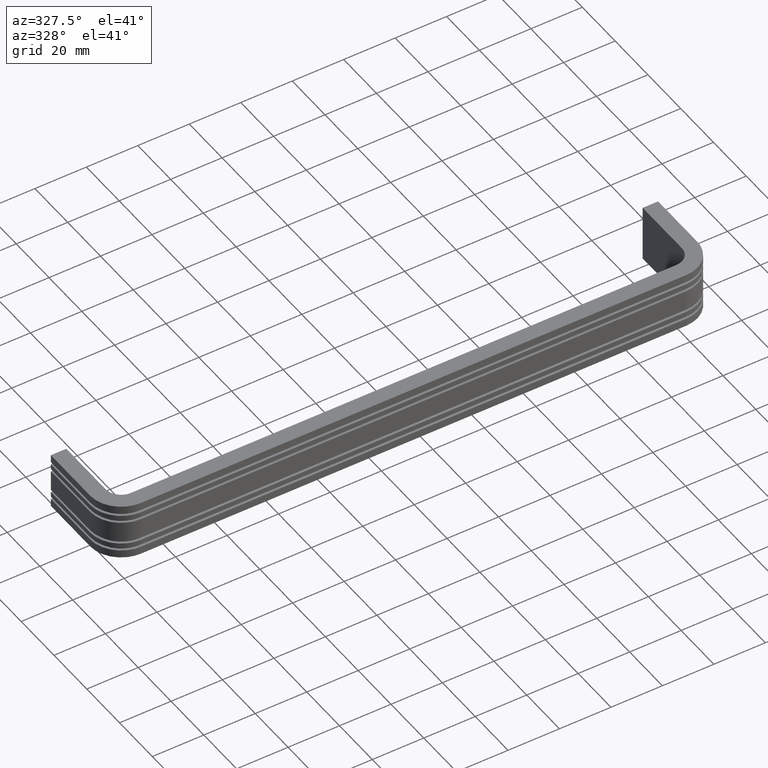
[diagram: clean part render]
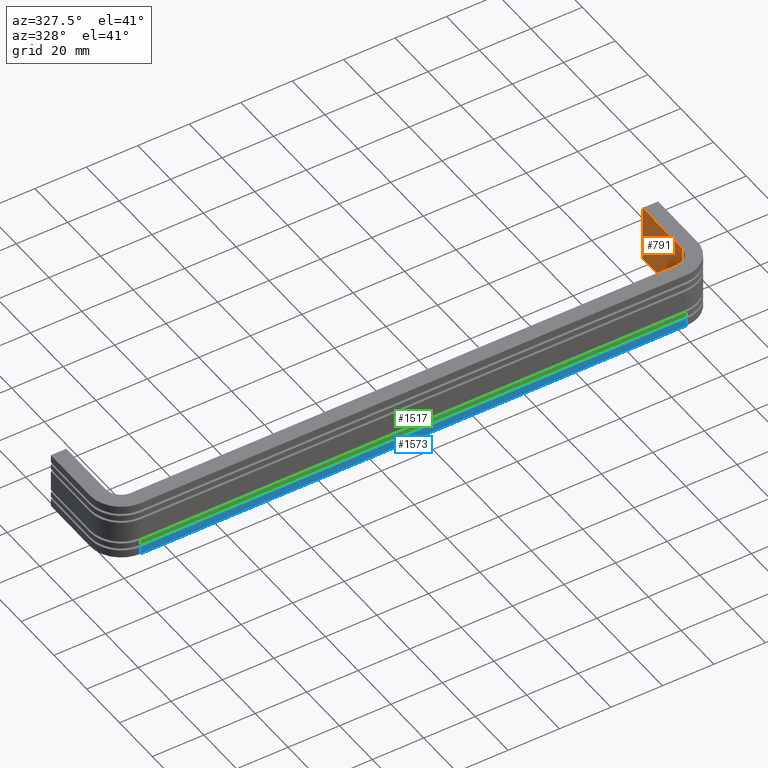
[diagram: same view with three faces highlighted in distinct colors, each labeled with its STEP entity id]
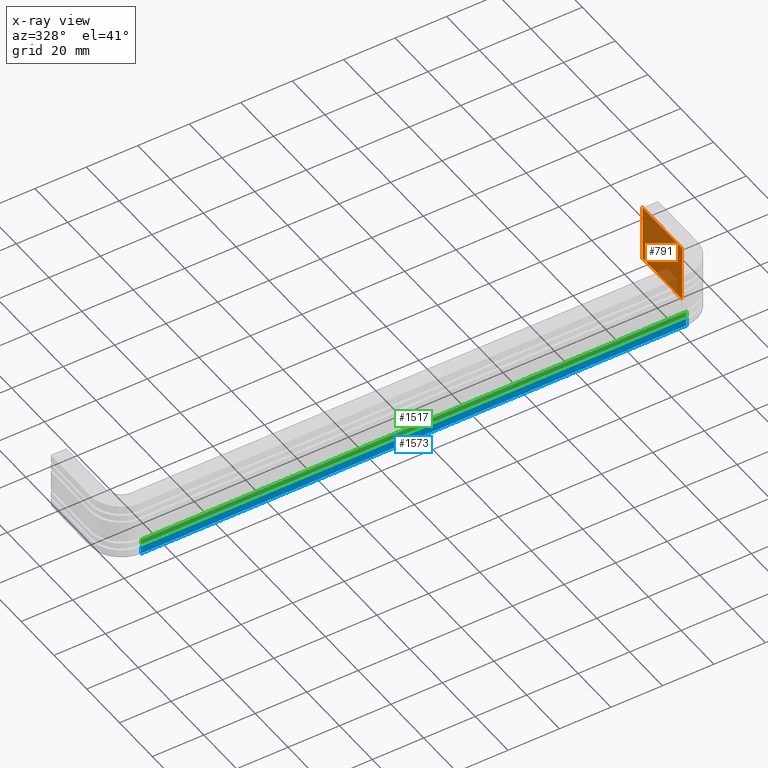
[diagram: x-ray of the same camera — body ghosted, the three highlighted faces saturated]
A machine part, auxiliary view with three faces highlighted in distinct colors.
The next image is the same camera in x-ray (body ghosted, the three faces saturated) — at least one of them is partly hidden behind the body in this view.
Their STEP definitions:

[orange] entity #791 — the highlighted face is a freeform B-spline surface patch.
#756=CARTESIAN_POINT('',(226.999900000000000,-25.198799953483348,12.098899957359730));
#757=CARTESIAN_POINT('',(226.999900000000000,-25.198799953483341,-12.098900547445711));
#758=CARTESIAN_POINT('',(226.999900000000000,1.198800597213507,12.098899957359730));
#759=CARTESIAN_POINT('',(226.999900000000000,1.198800597213507,-12.098900547445711));
#760=B_SPLINE_SURFACE_WITH_KNOTS('',1,1,((#756,#758),(#757,#759)),.UNSPECIFIED.,.F.,.F.,.U.,(2,2),(2,2),(0.0,24.197800504805439),(0.0,26.397600550696851),.UNSPECIFIED.);
#761=CARTESIAN_POINT('',(226.999900000000000,-24.0,-11.0));
#762=VERTEX_POINT('',#761);
#763=CARTESIAN_POINT('',(226.999900000000000,0.0,-11.0));
#764=VERTEX_POINT('',#763);
#765=CARTESIAN_POINT('',(226.999900000000000,-24.0,-11.0));
#766=CARTESIAN_POINT('',(226.999900000000000,0.0,-11.0));
#767=QUASI_UNIFORM_CURVE('',1,(#765,#766),.UNSPECIFIED.,.F.,.U.);
#768=EDGE_CURVE('',#762,#764,#767,.T.);
#769=ORIENTED_EDGE('',*,*,#768,.F.);
#770=CARTESIAN_POINT('',(226.999900000000000,-24.0,11.0));
#771=VERTEX_POINT('',#770);
#772=CARTESIAN_POINT('',(226.999900000000000,-24.0,11.0));
#773=CARTESIAN_POINT('',(226.999900000000000,-24.0,-11.0));
#774=QUASI_UNIFORM_CURVE('',1,(#772,#773),.UNSPECIFIED.,.F.,.U.);
#775=EDGE_CURVE('',#771,#762,#774,.T.);
#776=ORIENTED_EDGE('',*,*,#775,.F.);
#777=CARTESIAN_POINT('',(226.999900000000000,0.0,11.0));
#778=VERTEX_POINT('',#777);
#779=CARTESIAN_POINT('',(226.999900000000000,-24.0,11.0));
#780=CARTESIAN_POINT('',(226.999900000000000,0.0,11.0));
#781=QUASI_UNIFORM_CURVE('',1,(#779,#780),.UNSPECIFIED.,.F.,.U.);
#782=EDGE_CURVE('',#771,#778,#781,.T.);
#783=ORIENTED_EDGE('',*,*,#782,.T.);
#784=CARTESIAN_POINT('',(226.999900000000000,0.0,11.0));
#785=CARTESIAN_POINT('',(226.999900000000000,0.0,-11.0));
#786=QUASI_UNIFORM_CURVE('',1,(#784,#785),.UNSPECIFIED.,.F.,.U.);
#787=EDGE_CURVE('',#778,#764,#786,.T.);
#788=ORIENTED_EDGE('',*,*,#787,.T.);
#789=EDGE_LOOP('',(#769,#776,#783,#788));
#790=FACE_OUTER_BOUND('',#789,.T.);
#791=ADVANCED_FACE('',(#790),#760,.F.);

[blue] entity #1573 — the highlighted face is a freeform B-spline surface patch.
#1230=CARTESIAN_POINT('',(220.999900000000000,-36.0,-8.0));
#1231=VERTEX_POINT('',#1230);
#1245=CARTESIAN_POINT('',(220.999900000000000,-36.0,-11.0));
#1246=VERTEX_POINT('',#1245);
#1247=CARTESIAN_POINT('',(220.999900000000000,-36.0,-11.0));
#1248=CARTESIAN_POINT('',(220.999900000000000,-36.0,-8.0));
#1249=QUASI_UNIFORM_CURVE('',1,(#1247,#1248),.UNSPECIFIED.,.F.,.U.);
#1250=EDGE_CURVE('',#1246,#1231,#1249,.T.);
#1546=CARTESIAN_POINT('',(-1.589393836690521,-36.0,-11.149849994185420));
#1547=CARTESIAN_POINT('',(-1.589393836690521,-36.0,-7.850149925348312));
#1548=CARTESIAN_POINT('',(231.589284359556500,-36.0,-11.149849994185420));
#1549=CARTESIAN_POINT('',(231.589284359556500,-36.0,-7.850149925348312));
#1550=B_SPLINE_SURFACE_WITH_KNOTS('',1,1,((#1546,#1548),(#1547,#1549)),.UNSPECIFIED.,.F.,.F.,.U.,(2,2),(2,2),(0.0,3.299700068837106),(0.0,233.178678196247010),.UNSPECIFIED.);
#1551=CARTESIAN_POINT('',(9.0,-36.0,-8.0));
#1552=VERTEX_POINT('',#1551);
#1553=CARTESIAN_POINT('',(9.0,-36.0,-8.0));
#1554=CARTESIAN_POINT('',(220.999900000000000,-36.0,-8.0));
#1555=QUASI_UNIFORM_CURVE('',1,(#1553,#1554),.UNSPECIFIED.,.F.,.U.);
#1556=EDGE_CURVE('',#1552,#1231,#1555,.T.);
#1557=ORIENTED_EDGE('',*,*,#1556,.F.);
#1558=CARTESIAN_POINT('',(9.0,-36.0,-11.0));
#1559=VERTEX_POINT('',#1558);
#1560=CARTESIAN_POINT('',(9.0,-36.0,-11.0));
#1561=CARTESIAN_POINT('',(9.0,-36.0,-8.0));
#1562=QUASI_UNIFORM_CURVE('',1,(#1560,#1561),.UNSPECIFIED.,.F.,.U.);
#1563=EDGE_CURVE('',#1559,#1552,#1562,.T.);
#1564=ORIENTED_EDGE('',*,*,#1563,.F.);
#1565=CARTESIAN_POINT('',(9.0,-36.0,-11.0));
#1566=CARTESIAN_POINT('',(220.999900000000000,-36.0,-11.0));
#1567=QUASI_UNIFORM_CURVE('',1,(#1565,#1566),.UNSPECIFIED.,.F.,.U.);
#1568=EDGE_CURVE('',#1559,#1246,#1567,.T.);
#1569=ORIENTED_EDGE('',*,*,#1568,.T.);
#1570=ORIENTED_EDGE('',*,*,#1250,.T.);
#1571=EDGE_LOOP('',(#1557,#1564,#1569,#1570));
#1572=FACE_OUTER_BOUND('',#1571,.T.);
#1573=ADVANCED_FACE('',(#1572),#1550,.F.);

[green] entity #1517 — the highlighted face is a freeform B-spline surface patch.
#1124=CARTESIAN_POINT('',(220.999900000000000,-36.0,-5.0));
#1125=VERTEX_POINT('',#1124);
#1139=CARTESIAN_POINT('',(220.999900000000000,-36.0,-7.0));
#1140=VERTEX_POINT('',#1139);
#1141=CARTESIAN_POINT('',(220.999900000000000,-36.0,-7.0));
#1142=CARTESIAN_POINT('',(220.999900000000000,-36.0,-5.0));
#1143=QUASI_UNIFORM_CURVE('',1,(#1141,#1142),.UNSPECIFIED.,.F.,.U.);
#1144=EDGE_CURVE('',#1140,#1125,#1143,.T.);
#1490=CARTESIAN_POINT('',(-1.589393836690510,-36.0,-7.099899996123613));
#1491=CARTESIAN_POINT('',(-1.589393836690510,-36.0,-4.900099950232208));
#1492=CARTESIAN_POINT('',(231.589284359556500,-36.0,-7.099899996123613));
#1493=CARTESIAN_POINT('',(231.589284359556500,-36.0,-4.900099950232209));
#1494=B_SPLINE_SURFACE_WITH_KNOTS('',1,1,((#1490,#1492),(#1491,#1493)),.UNSPECIFIED.,.F.,.F.,.U.,(2,2),(2,2),(0.0,2.199800045891405),(0.0,233.178678196247010),.UNSPECIFIED.);
#1495=CARTESIAN_POINT('',(9.0,-36.0,-5.0));
#1496=VERTEX_POINT('',#1495);
#1497=CARTESIAN_POINT('',(9.0,-36.0,-5.0));
#1498=CARTESIAN_POINT('',(220.999900000000000,-36.0,-5.0));
#1499=QUASI_UNIFORM_CURVE('',1,(#1497,#1498),.UNSPECIFIED.,.F.,.U.);
#1500=EDGE_CURVE('',#1496,#1125,#1499,.T.);
#1501=ORIENTED_EDGE('',*,*,#1500,.F.);
#1502=CARTESIAN_POINT('',(9.0,-36.0,-7.0));
#1503=VERTEX_POINT('',#1502);
#1504=CARTESIAN_POINT('',(9.0,-36.0,-7.0));
#1505=CARTESIAN_POINT('',(9.0,-36.0,-5.0));
#1506=QUASI_UNIFORM_CURVE('',1,(#1504,#1505),.UNSPECIFIED.,.F.,.U.);
#1507=EDGE_CURVE('',#1503,#1496,#1506,.T.);
#1508=ORIENTED_EDGE('',*,*,#1507,.F.);
#1509=CARTESIAN_POINT('',(9.0,-36.0,-7.0));
#1510=CARTESIAN_POINT('',(220.999900000000000,-36.0,-7.0));
#1511=QUASI_UNIFORM_CURVE('',1,(#1509,#1510),.UNSPECIFIED.,.F.,.U.);
#1512=EDGE_CURVE('',#1503,#1140,#1511,.T.);
#1513=ORIENTED_EDGE('',*,*,#1512,.T.);
#1514=ORIENTED_EDGE('',*,*,#1144,.T.);
#1515=EDGE_LOOP('',(#1501,#1508,#1513,#1514));
#1516=FACE_OUTER_BOUND('',#1515,.T.);
#1517=ADVANCED_FACE('',(#1516),#1494,.F.);